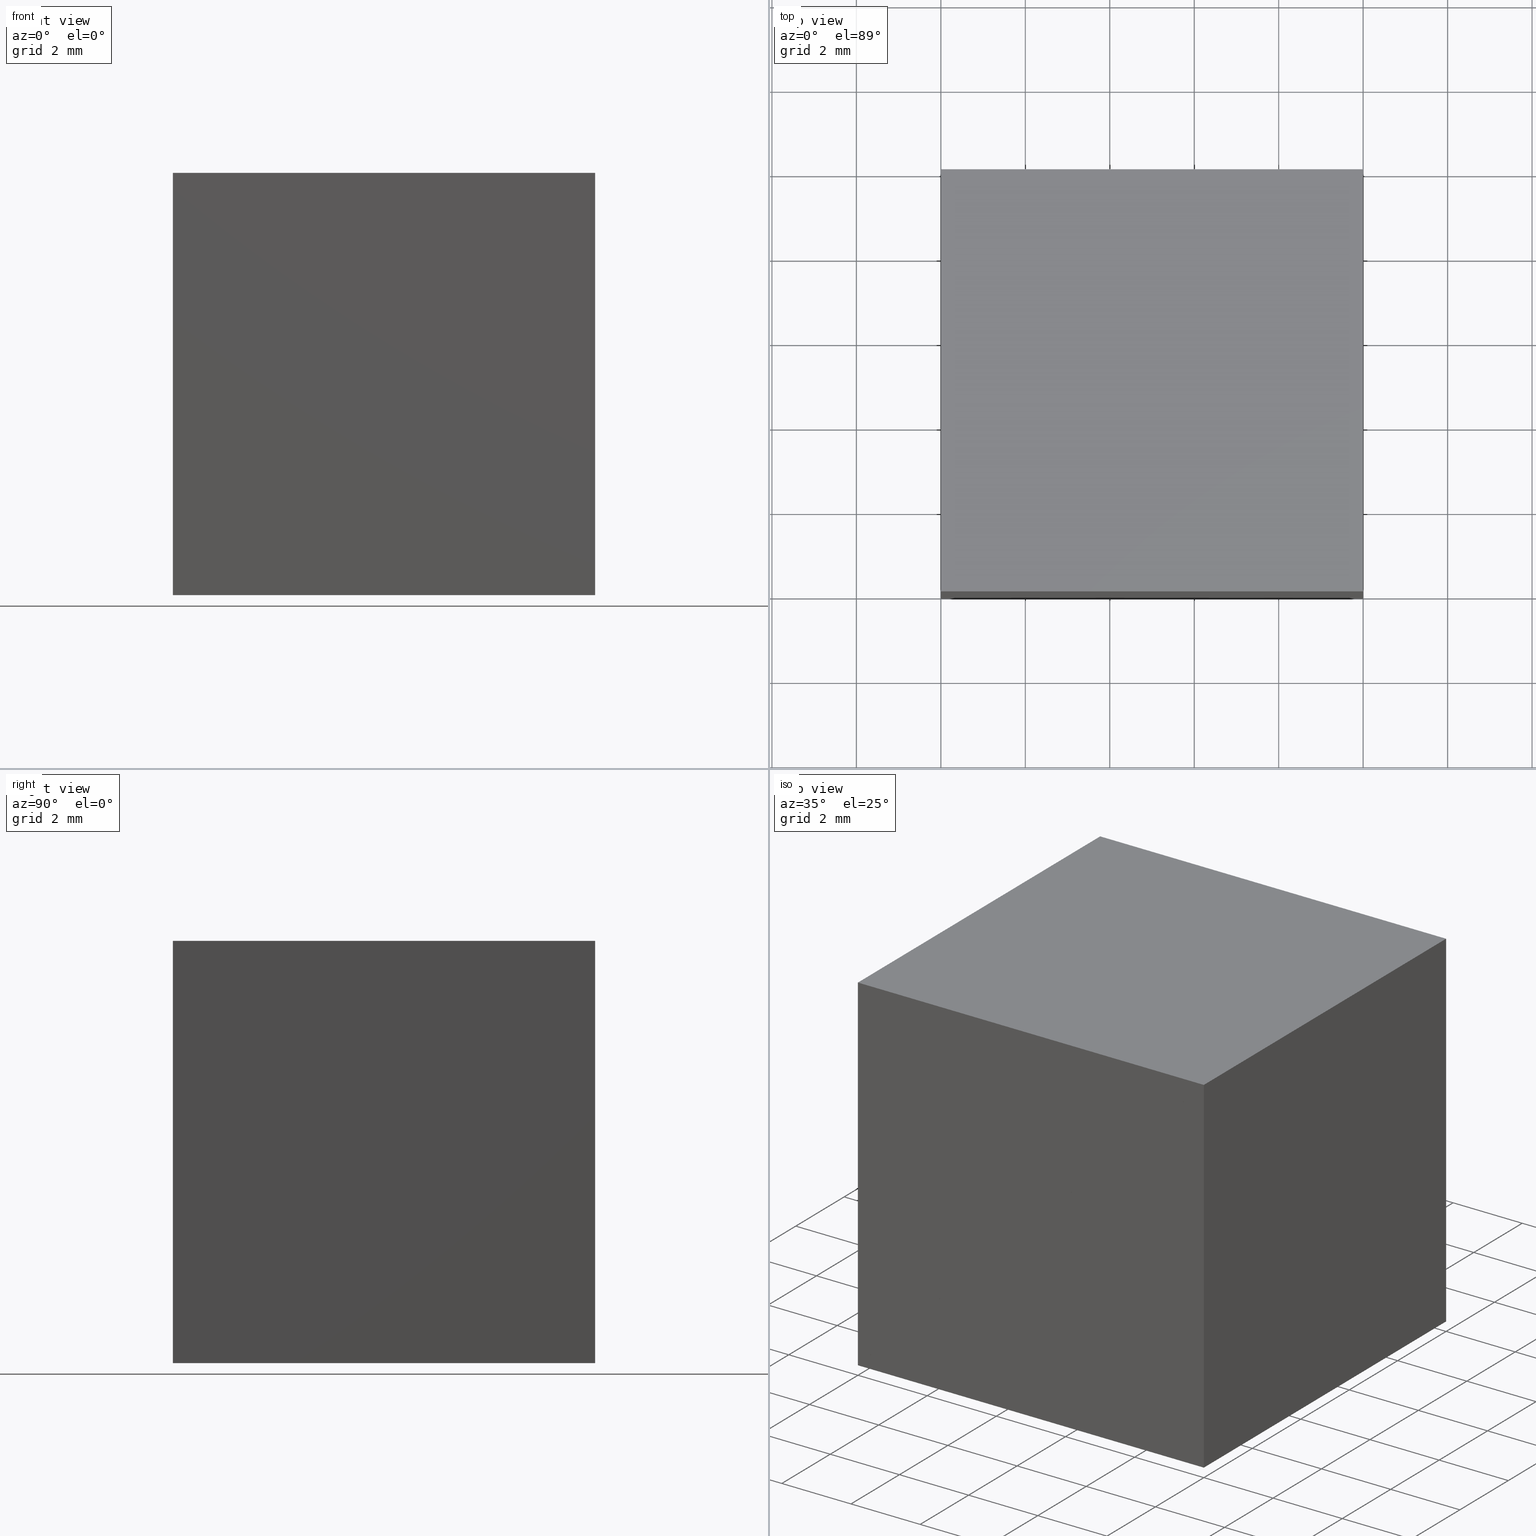
[diagram: canonical four-view strip — front | top / right | iso, engineering-drawing reading convention]
A machine part, canonical four-view strip (front | top / right | iso — engineering-drawing reading convention). The complete STEP part file that produces these views, byte-faithful:
ISO-10303-21;
HEADER;
FILE_DESCRIPTION (( 'STEP AP214' ),
    '1' );
FILE_NAME ('452000.STEP',
    '2019-08-22T05:47:40',
    ( 'user' ),
    ( '΢���й�' ),
    'SwSTEP 2.0',
    'SolidWorks 2016',
    '' );
FILE_SCHEMA (( 'AUTOMOTIVE_DESIGN' ));
ENDSEC;

DATA;
#1 = DIRECTION ( 'NONE',  ( -0.0000000000000000000, 0.0000000000000000000, 1.000000000000000000 ) ) ;
#2 = EDGE_LOOP ( 'NONE', ( #242, #60, #70, #237 ) ) ;
#3 = SURFACE_SIDE_STYLE ('',( #244 ) ) ;
#4 = ORIENTED_EDGE ( 'NONE', *, *, #204, .F. ) ;
#5 = DIRECTION ( 'NONE',  ( 0.0000000000000000000, 1.000000000000000000, 0.0000000000000000000 ) ) ;
#6 = VECTOR ( 'NONE', #214, 1000.000000000000000 ) ;
#7 = DIRECTION ( 'NONE',  ( -0.0000000000000000000, -1.000000000000000000, -0.0000000000000000000 ) ) ;
#8 = ORIENTED_EDGE ( 'NONE', *, *, #216, .T. ) ;
#9 = SURFACE_STYLE_USAGE ( .BOTH. , #143 ) ;
#10 = ORIENTED_EDGE ( 'NONE', *, *, #204, .T. ) ;
#11 = ORIENTED_EDGE ( 'NONE', *, *, #94, .F. ) ;
#12 = LINE ( 'NONE', #239, #129 ) ;
#13 = DIRECTION ( 'NONE',  ( -0.7071067811865476800, 0.0000000000000000000, -0.7071067811865474600 ) ) ;
#14 = ORIENTED_EDGE ( 'NONE', *, *, #127, .F. ) ;
#15 = PRODUCT_DEFINITION_CONTEXT ( 'detailed design', #222, 'design' ) ;
#16 = DIRECTION ( 'NONE',  ( 0.0000000000000000000, 0.0000000000000000000, 1.000000000000000000 ) ) ;
#17 = SURFACE_SIDE_STYLE ('',( #29 ) ) ;
#18 = LINE ( 'NONE', #146, #126 ) ;
#19 = LINE ( 'NONE', #48, #261 ) ;
#20 = EDGE_LOOP ( 'NONE', ( #140, #250, #200, #49 ) ) ;
#21 = ADVANCED_FACE ( 'NONE', ( #99 ), #195, .T. ) ;
#22 = DIRECTION ( 'NONE',  ( 0.0000000000000000000, 0.0000000000000000000, -1.000000000000000000 ) ) ;
#23 = CARTESIAN_POINT ( 'NONE',  ( 0.0000000000000000000, 10.00000000000000000, 0.0000000000000000000 ) ) ;
#24 = LINE ( 'NONE', #191, #268 ) ;
#25 = CARTESIAN_POINT ( 'NONE',  ( 0.0000000000000000000, 10.00000000000000000, -10.00000000000000000 ) ) ;
#26 = CARTESIAN_POINT ( 'NONE',  ( 0.0000000000000000000, 10.00000000000000000, -10.00000000000000000 ) ) ;
#27 = ORIENTED_EDGE ( 'NONE', *, *, #134, .F. ) ;
#28 = DIRECTION ( 'NONE',  ( 0.7071067811865476800, 0.0000000000000000000, 0.7071067811865474600 ) ) ;
#29 = SURFACE_STYLE_FILL_AREA ( #203 ) ;
#30 = CARTESIAN_POINT ( 'NONE',  ( -10.00000000000000000, 10.00000000000000000, -9.999999999999996400 ) ) ;
#31 = FILL_AREA_STYLE_COLOUR ( '', #43 ) ;
#32 = MANIFOLD_SOLID_BREP ( '͹̨-����1', #234 ) ;
#33 = LINE ( 'NONE', #182, #37 ) ;
#34 = DIRECTION ( 'NONE',  ( 1.000000000000000000, 0.0000000000000000000, 0.0000000000000000000 ) ) ;
#35 = APPLICATION_CONTEXT ( 'automotive_design' ) ;
#36 = AXIS2_PLACEMENT_3D ( 'NONE', #109, #1, #135 ) ;
#37 = VECTOR ( 'NONE', #22, 1000.000000000000000 ) ;
#38 = EDGE_LOOP ( 'NONE', ( #62, #14, #101, #167 ) ) ;
#39 = ADVANCED_FACE ( 'NONE', ( #224 ), #91, .F. ) ;
#40 = ORIENTED_EDGE ( 'NONE', *, *, #227, .F. ) ;
#41 = AXIS2_PLACEMENT_3D ( 'NONE', #23, #300, #133 ) ;
#42 = PLANE ( 'NONE',  #41 ) ;
#43 = COLOUR_RGB ( '',1.000000000000000000, 1.000000000000000000, 1.000000000000000000 ) ;
#44 = DIRECTION ( 'NONE',  ( -1.000000000000000000, 0.0000000000000000000, 3.469446951953614200E-016 ) ) ;
#45 = DIRECTION ( 'NONE',  ( 0.7071067811865474600, 0.0000000000000000000, -0.7071067811865476800 ) ) ;
#46 = CARTESIAN_POINT ( 'NONE',  ( 0.0000000000000000000, 10.00000000000000000, 0.0000000000000000000 ) ) ;
#47 = DIRECTION ( 'NONE',  ( 0.7071067811865476800, 0.0000000000000000000, 0.7071067811865474600 ) ) ;
#48 = CARTESIAN_POINT ( 'NONE',  ( 0.0000000000000000000, 10.00000000000000000, 0.0000000000000000000 ) ) ;
#49 = ORIENTED_EDGE ( 'NONE', *, *, #153, .T. ) ;
#50 = VERTEX_POINT ( 'NONE', #114 ) ;
#51 = CARTESIAN_POINT ( 'NONE',  ( 0.0000000000000000000, 10.00000000000000000, 0.0000000000000000000 ) ) ;
#52 = LINE ( 'NONE', #87, #179 ) ;
#53 = PRODUCT ( '452000', '452000', '', ( #174 ) ) ;
#54 =( NAMED_UNIT ( * ) SI_UNIT ( $, .STERADIAN. ) SOLID_ANGLE_UNIT ( ) );
#55 = EDGE_LOOP ( 'NONE', ( #202, #40, #27 ) ) ;
#56 = VERTEX_POINT ( 'NONE', #142 ) ;
#57 = UNCERTAINTY_MEASURE_WITH_UNIT (LENGTH_MEASURE( 1.000000000000000100E-005 ), #292, 'distance_accuracy_value', 'NONE');
#58 = ORIENTED_EDGE ( 'NONE', *, *, #258, .T. ) ;
#59 = LINE ( 'NONE', #215, #6 ) ;
#60 = ORIENTED_EDGE ( 'NONE', *, *, #107, .F. ) ;
#61 = DIRECTION ( 'NONE',  ( -0.0000000000000000000, -1.000000000000000000, -0.0000000000000000000 ) ) ;
#62 = ORIENTED_EDGE ( 'NONE', *, *, #94, .T. ) ;
#63 = LINE ( 'NONE', #262, #75 ) ;
#64 = EDGE_CURVE ( 'NONE', #197, #121, #19, .T. ) ;
#65 = VERTEX_POINT ( 'NONE', #72 ) ;
#66 = ORIENTED_EDGE ( 'NONE', *, *, #116, .T. ) ;
#67 = VERTEX_POINT ( 'NONE', #285 ) ;
#68 = VECTOR ( 'NONE', #264, 1000.000000000000000 ) ;
#69 = EDGE_CURVE ( 'NONE', #177, #296, #139, .T. ) ;
#70 = ORIENTED_EDGE ( 'NONE', *, *, #134, .T. ) ;
#71 = DIRECTION ( 'NONE',  ( 0.0000000000000000000, 0.0000000000000000000, 1.000000000000000000 ) ) ;
#72 = CARTESIAN_POINT ( 'NONE',  ( -10.00000000000000000, -0.0000000000000000000, -9.999999999999996400 ) ) ;
#73 = AXIS2_PLACEMENT_3D ( 'NONE', #254, #156, #232 ) ;
#74 = DIRECTION ( 'NONE',  ( 3.469446951953614200E-016, -0.0000000000000000000, 1.000000000000000000 ) ) ;
#75 = VECTOR ( 'NONE', #111, 1000.000000000000000 ) ;
#76 = LINE ( 'NONE', #266, #201 ) ;
#77 = FILL_AREA_STYLE_COLOUR ( '', #82 ) ;
#78 = FACE_OUTER_BOUND ( 'NONE', #38, .T. ) ;
#79 = EDGE_CURVE ( 'NONE', #50, #125, #76, .T. ) ;
#80 = VERTEX_POINT ( 'NONE', #290 ) ;
#81 = ADVANCED_FACE ( 'NONE', ( #144 ), #270, .T. ) ;
#82 = COLOUR_RGB ( '',1.000000000000000000, 1.000000000000000000, 1.000000000000000000 ) ;
#83 =( GEOMETRIC_REPRESENTATION_CONTEXT ( 3 ) GLOBAL_UNCERTAINTY_ASSIGNED_CONTEXT ( ( #168 ) ) GLOBAL_UNIT_ASSIGNED_CONTEXT ( ( #246, #223, #54 ) ) REPRESENTATION_CONTEXT ( 'NONE', 'WORKASPACE' ) );
#84 = EDGE_CURVE ( 'NONE', #125, #65, #24, .T. ) ;
#85 = DIRECTION ( 'NONE',  ( -1.000000000000000000, -0.0000000000000000000, -0.0000000000000000000 ) ) ;
#86 =( NAMED_UNIT ( * ) SI_UNIT ( $, .STERADIAN. ) SOLID_ANGLE_UNIT ( ) );
#87 = CARTESIAN_POINT ( 'NONE',  ( 0.0000000000000000000, 0.0000000000000000000, -10.00000000000000000 ) ) ;
#88 = FACE_OUTER_BOUND ( 'NONE', #20, .T. ) ;
#89 = CARTESIAN_POINT ( 'NONE',  ( 0.0000000000000000000, 0.0000000000000000000, 0.0000000000000000000 ) ) ;
#90 =( NAMED_UNIT ( * ) SI_UNIT ( $, .STERADIAN. ) SOLID_ANGLE_UNIT ( ) );
#91 = PLANE ( 'NONE',  #291 ) ;
#92 = PRESENTATION_STYLE_ASSIGNMENT (( #9 ) ) ;
#93 = PLANE ( 'NONE',  #181 ) ;
#94 = EDGE_CURVE ( 'NONE', #296, #188, #210, .T. ) ;
#95 = VECTOR ( 'NONE', #61, 1000.000000000000000 ) ;
#96 = CARTESIAN_POINT ( 'NONE',  ( -10.00000000000000000, 0.0000000000000000000, -9.999999999999996400 ) ) ;
#97 = DIRECTION ( 'NONE',  ( 0.0000000000000000000, -0.0000000000000000000, 1.000000000000000000 ) ) ;
#98 = AXIS2_PLACEMENT_3D ( 'NONE', #124, #273, #97 ) ;
#99 = FACE_OUTER_BOUND ( 'NONE', #55, .T. ) ;
#100 = VECTOR ( 'NONE', #187, 1000.000000000000000 ) ;
#101 = ORIENTED_EDGE ( 'NONE', *, *, #147, .F. ) ;
#102 = COLOUR_RGB ( '',1.000000000000000000, 1.000000000000000000, 1.000000000000000000 ) ;
#103 = ADVANCED_FACE ( 'NONE', ( #78 ), #93, .F. ) ;
#104 = PLANE ( 'NONE',  #73 ) ;
#105 = EDGE_LOOP ( 'NONE', ( #4, #193, #301, #284 ) ) ;
#106 = ADVANCED_BREP_SHAPE_REPRESENTATION ( '452000', ( #32, #196, #233 ), #83 ) ;
#107 = EDGE_CURVE ( 'NONE', #121, #67, #256, .T. ) ;
#108 = EDGE_LOOP ( 'NONE', ( #186, #66, #130 ) ) ;
#109 = CARTESIAN_POINT ( 'NONE',  ( -10.00000000000000000, 10.00000000000000000, 0.0000000000000000000 ) ) ;
#110 = FACE_OUTER_BOUND ( 'NONE', #2, .T. ) ;
#111 = DIRECTION ( 'NONE',  ( -1.000000000000000000, -0.0000000000000000000, -0.0000000000000000000 ) ) ;
#112 = DIRECTION ( 'NONE',  ( 0.0000000000000000000, -1.000000000000000000, 0.0000000000000000000 ) ) ;
#113 = PLANE ( 'NONE',  #218 ) ;
#114 = CARTESIAN_POINT ( 'NONE',  ( -10.00000000000000000, 10.00000000000000000, 0.0000000000000000000 ) ) ;
#115 = CARTESIAN_POINT ( 'NONE',  ( 0.0000000000000000000, 10.00000000000000000, 0.0000000000000000000 ) ) ;
#116 = EDGE_CURVE ( 'NONE', #263, #80, #18, .T. ) ;
#117 =( LENGTH_UNIT ( ) NAMED_UNIT ( * ) SI_UNIT ( .MILLI., .METRE. ) );
#118 = ORIENTED_EDGE ( 'NONE', *, *, #127, .T. ) ;
#119 = CARTESIAN_POINT ( 'NONE',  ( 0.0000000000000000000, 10.00000000000000000, -10.00000000000000000 ) ) ;
#120 = ORIENTED_EDGE ( 'NONE', *, *, #69, .F. ) ;
#121 = VERTEX_POINT ( 'NONE', #46 ) ;
#122 = FACE_OUTER_BOUND ( 'NONE', #260, .T. ) ;
#123 =( NAMED_UNIT ( * ) PLANE_ANGLE_UNIT ( ) SI_UNIT ( $, .RADIAN. ) );
#124 = CARTESIAN_POINT ( 'NONE',  ( 0.0000000000000000000, 0.0000000000000000000, 0.0000000000000000000 ) ) ;
#125 = VERTEX_POINT ( 'NONE', #288 ) ;
#126 = VECTOR ( 'NONE', #217, 1000.000000000000000 ) ;
#127 = EDGE_CURVE ( 'NONE', #263, #188, #251, .T. ) ;
#128 = ORIENTED_EDGE ( 'NONE', *, *, #165, .F. ) ;
#129 = VECTOR ( 'NONE', #28, 1000.000000000000000 ) ;
#130 = ORIENTED_EDGE ( 'NONE', *, *, #185, .T. ) ;
#131 = ADVANCED_FACE ( 'NONE', ( #122 ), #113, .F. ) ;
#132 = STYLED_ITEM ( 'NONE', ( #274 ), #106 ) ;
#133 = DIRECTION ( 'NONE',  ( -0.7071067811865476800, 0.0000000000000000000, -0.7071067811865474600 ) ) ;
#134 = EDGE_CURVE ( 'NONE', #121, #50, #63, .T. ) ;
#135 = DIRECTION ( 'NONE',  ( 1.000000000000000000, 0.0000000000000000000, 0.0000000000000000000 ) ) ;
#136 = VECTOR ( 'NONE', #47, 1000.000000000000000 ) ;
#137 = SURFACE_STYLE_USAGE ( .BOTH. , #3 ) ;
#138 = DIRECTION ( 'NONE',  ( 0.0000000000000000000, -0.0000000000000000000, 1.000000000000000000 ) ) ;
#139 = LINE ( 'NONE', #30, #68 ) ;
#140 = ORIENTED_EDGE ( 'NONE', *, *, #84, .F. ) ;
#141 = DIRECTION ( 'NONE',  ( -1.000000000000000000, 0.0000000000000000000, 0.0000000000000000000 ) ) ;
#142 = CARTESIAN_POINT ( 'NONE',  ( 0.0000000000000000000, 0.0000000000000000000, -10.00000000000000000 ) ) ;
#143 = SURFACE_SIDE_STYLE ('',( #287 ) ) ;
#144 = FACE_OUTER_BOUND ( 'NONE', #108, .T. ) ;
#145 = FILL_AREA_STYLE ('',( #31 ) ) ;
#146 = CARTESIAN_POINT ( 'NONE',  ( 0.0000000000000000000, 10.00000000000000000, 0.0000000000000000000 ) ) ;
#147 = EDGE_CURVE ( 'NONE', #177, #263, #12, .T. ) ;
#148 = DIRECTION ( 'NONE',  ( -0.0000000000000000000, 1.000000000000000000, 0.0000000000000000000 ) ) ;
#149 = ORIENTED_EDGE ( 'NONE', *, *, #219, .T. ) ;
#150 = SURFACE_STYLE_USAGE ( .BOTH. , #17 ) ;
#151 = AXIS2_PLACEMENT_3D ( 'NONE', #115, #148, #170 ) ;
#152 = PRESENTATION_LAYER_ASSIGNMENT (  '', '', ( #132 ) ) ;
#153 = EDGE_CURVE ( 'NONE', #197, #65, #59, .T. ) ;
#154 = FACE_OUTER_BOUND ( 'NONE', #105, .T. ) ;
#155 = ADVANCED_FACE ( 'NONE', ( #158 ), #161, .F. ) ;
#156 = DIRECTION ( 'NONE',  ( -1.000000000000000000, 0.0000000000000000000, 0.0000000000000000000 ) ) ;
#157 = PLANE ( 'NONE',  #36 ) ;
#158 = FACE_OUTER_BOUND ( 'NONE', #276, .T. ) ;
#159 = FILL_AREA_STYLE ('',( #190 ) ) ;
#160 = LINE ( 'NONE', #209, #282 ) ;
#161 = PLANE ( 'NONE',  #247 ) ;
#162 = CARTESIAN_POINT ( 'NONE',  ( 0.0000000000000000000, 10.00000000000000000, 0.0000000000000000000 ) ) ;
#163 = DIRECTION ( 'NONE',  ( 0.7071067811865476800, 0.0000000000000000000, 0.7071067811865474600 ) ) ;
#164 = MECHANICAL_DESIGN_GEOMETRIC_PRESENTATION_REPRESENTATION (  '', ( #132 ), #183 ) ;
#165 = EDGE_CURVE ( 'NONE', #56, #296, #52, .T. ) ;
#166 = DIRECTION ( 'NONE',  ( 0.0000000000000000000, -0.0000000000000000000, 1.000000000000000000 ) ) ;
#167 = ORIENTED_EDGE ( 'NONE', *, *, #69, .T. ) ;
#168 = UNCERTAINTY_MEASURE_WITH_UNIT (LENGTH_MEASURE( 1.000000000000000100E-005 ), #246, 'distance_accuracy_value', 'NONE');
#169 = LINE ( 'NONE', #211, #100 ) ;
#170 = DIRECTION ( 'NONE',  ( 0.0000000000000000000, -0.0000000000000000000, 1.000000000000000000 ) ) ;
#171 = PRODUCT_DEFINITION_SHAPE ( 'NONE', 'NONE',  #249 ) ;
#172 = ORIENTED_EDGE ( 'NONE', *, *, #165, .T. ) ;
#173 = VECTOR ( 'NONE', #44, 1000.000000000000000 ) ;
#174 = PRODUCT_CONTEXT ( 'NONE', #35, 'mechanical' ) ;
#175 = ORIENTED_EDGE ( 'NONE', *, *, #116, .F. ) ;
#176 = APPLICATION_PROTOCOL_DEFINITION ( 'draft international standard', 'automotive_design', 1998, #35 ) ;
#177 = VERTEX_POINT ( 'NONE', #283 ) ;
#178 = STYLED_ITEM ( 'NONE', ( #92 ), #32 ) ;
#179 = VECTOR ( 'NONE', #236, 1000.000000000000000 ) ;
#180 = ORIENTED_EDGE ( 'NONE', *, *, #219, .F. ) ;
#181 = AXIS2_PLACEMENT_3D ( 'NONE', #198, #45, #13 ) ;
#182 = CARTESIAN_POINT ( 'NONE',  ( 0.0000000000000000000, 0.0000000000000000000, 0.0000000000000000000 ) ) ;
#183 =( GEOMETRIC_REPRESENTATION_CONTEXT ( 3 ) GLOBAL_UNCERTAINTY_ASSIGNED_CONTEXT ( ( #57 ) ) GLOBAL_UNIT_ASSIGNED_CONTEXT ( ( #292, #123, #272 ) ) REPRESENTATION_CONTEXT ( 'NONE', 'WORKASPACE' ) );
#184 = DIRECTION ( 'NONE',  ( -0.0000000000000000000, -0.0000000000000000000, -1.000000000000000000 ) ) ;
#185 = EDGE_CURVE ( 'NONE', #80, #177, #238, .T. ) ;
#186 = ORIENTED_EDGE ( 'NONE', *, *, #147, .T. ) ;
#187 = DIRECTION ( 'NONE',  ( 0.7071067811865476800, 0.0000000000000000000, 0.7071067811865474600 ) ) ;
#188 = VERTEX_POINT ( 'NONE', #259 ) ;
#189 = VECTOR ( 'NONE', #7, 1000.000000000000000 ) ;
#190 = FILL_AREA_STYLE_COLOUR ( '', #102 ) ;
#191 = CARTESIAN_POINT ( 'NONE',  ( -10.00000000000000000, -0.0000000000000000000, -9.999999999999996400 ) ) ;
#192 = CARTESIAN_POINT ( 'NONE',  ( 0.0000000000000000000, 10.00000000000000000, 0.0000000000000000000 ) ) ;
#193 = ORIENTED_EDGE ( 'NONE', *, *, #153, .F. ) ;
#194 = DIRECTION ( 'NONE',  ( 1.000000000000000000, 0.0000000000000000000, -3.469446951953614200E-016 ) ) ;
#195 = PLANE ( 'NONE',  #199 ) ;
#196 = MANIFOLD_SOLID_BREP ( '͹̨-����2', #297 ) ;
#197 = VERTEX_POINT ( 'NONE', #212 ) ;
#198 = CARTESIAN_POINT ( 'NONE',  ( -10.00000000000000000, 10.00000000000000000, -9.999999999999996400 ) ) ;
#199 = AXIS2_PLACEMENT_3D ( 'NONE', #220, #241, #166 ) ;
#200 = ORIENTED_EDGE ( 'NONE', *, *, #227, .T. ) ;
#201 = VECTOR ( 'NONE', #112, 1000.000000000000000 ) ;
#202 = ORIENTED_EDGE ( 'NONE', *, *, #64, .F. ) ;
#203 = FILL_AREA_STYLE ('',( #77 ) ) ;
#204 = EDGE_CURVE ( 'NONE', #65, #67, #169, .T. ) ;
#205 = VECTOR ( 'NONE', #221, 1000.000000000000000 ) ;
#206 = ORIENTED_EDGE ( 'NONE', *, *, #258, .F. ) ;
#207 = ADVANCED_FACE ( 'NONE', ( #110 ), #157, .T. ) ;
#208 = CARTESIAN_POINT ( 'NONE',  ( 0.0000000000000000000, 10.00000000000000000, 0.0000000000000000000 ) ) ;
#209 = CARTESIAN_POINT ( 'NONE',  ( -10.00000000000000000, 10.00000000000000000, -9.999999999999996400 ) ) ;
#210 = LINE ( 'NONE', #96, #136 ) ;
#211 = CARTESIAN_POINT ( 'NONE',  ( 0.0000000000000000000, 0.0000000000000000000, 0.0000000000000000000 ) ) ;
#212 = CARTESIAN_POINT ( 'NONE',  ( -10.00000000000000000, 10.00000000000000000, -9.999999999999996400 ) ) ;
#213 = PRESENTATION_LAYER_ASSIGNMENT (  '', '', ( #178 ) ) ;
#214 = DIRECTION ( 'NONE',  ( 0.0000000000000000000, -1.000000000000000000, 0.0000000000000000000 ) ) ;
#215 = CARTESIAN_POINT ( 'NONE',  ( -10.00000000000000000, 10.00000000000000000, -9.999999999999996400 ) ) ;
#216 = EDGE_CURVE ( 'NONE', #67, #125, #226, .T. ) ;
#217 = DIRECTION ( 'NONE',  ( 0.0000000000000000000, 0.0000000000000000000, -1.000000000000000000 ) ) ;
#218 = AXIS2_PLACEMENT_3D ( 'NONE', #162, #141, #71 ) ;
#219 = EDGE_CURVE ( 'NONE', #80, #56, #289, .T. ) ;
#220 = CARTESIAN_POINT ( 'NONE',  ( 0.0000000000000000000, 10.00000000000000000, 0.0000000000000000000 ) ) ;
#221 = DIRECTION ( 'NONE',  ( 0.0000000000000000000, -1.000000000000000000, 0.0000000000000000000 ) ) ;
#222 = APPLICATION_CONTEXT ( 'automotive_design' ) ;
#223 =( NAMED_UNIT ( * ) PLANE_ANGLE_UNIT ( ) SI_UNIT ( $, .RADIAN. ) );
#224 = FACE_OUTER_BOUND ( 'NONE', #252, .T. ) ;
#225 = UNCERTAINTY_MEASURE_WITH_UNIT (LENGTH_MEASURE( 1.000000000000000100E-005 ), #281, 'distance_accuracy_value', 'NONE');
#226 = LINE ( 'NONE', #255, #235 ) ;
#227 = EDGE_CURVE ( 'NONE', #50, #197, #160, .T. ) ;
#228 = MECHANICAL_DESIGN_GEOMETRIC_PRESENTATION_REPRESENTATION (  '', ( #178 ), #243 ) ;
#229 = ADVANCED_FACE ( 'NONE', ( #154 ), #42, .T. ) ;
#230 = FACE_OUTER_BOUND ( 'NONE', #271, .T. ) ;
#231 = STYLED_ITEM ( 'NONE', ( #298 ), #196 ) ;
#232 = DIRECTION ( 'NONE',  ( 0.0000000000000000000, 0.0000000000000000000, 1.000000000000000000 ) ) ;
#233 = AXIS2_PLACEMENT_3D ( 'NONE', #245, #16, #34 ) ;
#234 = CLOSED_SHELL ( 'NONE', ( #103, #131, #39, #81, #299 ) ) ;
#235 = VECTOR ( 'NONE', #85, 1000.000000000000000 ) ;
#236 = DIRECTION ( 'NONE',  ( -1.000000000000000000, 0.0000000000000000000, 3.469446951953614200E-016 ) ) ;
#237 = ORIENTED_EDGE ( 'NONE', *, *, #79, .T. ) ;
#238 = LINE ( 'NONE', #26, #173 ) ;
#239 = CARTESIAN_POINT ( 'NONE',  ( -10.00000000000000000, 10.00000000000000000, -9.999999999999996400 ) ) ;
#240 = ORIENTED_EDGE ( 'NONE', *, *, #84, .T. ) ;
#241 = DIRECTION ( 'NONE',  ( 0.0000000000000000000, 1.000000000000000000, 0.0000000000000000000 ) ) ;
#242 = ORIENTED_EDGE ( 'NONE', *, *, #216, .F. ) ;
#243 =( GEOMETRIC_REPRESENTATION_CONTEXT ( 3 ) GLOBAL_UNCERTAINTY_ASSIGNED_CONTEXT ( ( #280 ) ) GLOBAL_UNIT_ASSIGNED_CONTEXT ( ( #117, #286, #90 ) ) REPRESENTATION_CONTEXT ( 'NONE', 'WORKASPACE' ) );
#244 = SURFACE_STYLE_FILL_AREA ( #159 ) ;
#245 = CARTESIAN_POINT ( 'NONE',  ( 0.0000000000000000000, 0.0000000000000000000, 0.0000000000000000000 ) ) ;
#246 =( LENGTH_UNIT ( ) NAMED_UNIT ( * ) SI_UNIT ( .MILLI., .METRE. ) );
#247 = AXIS2_PLACEMENT_3D ( 'NONE', #89, #5, #138 ) ;
#248 = APPLICATION_PROTOCOL_DEFINITION ( 'draft international standard', 'automotive_design', 1998, #222 ) ;
#249 = PRODUCT_DEFINITION ( 'δ֪', '', #267, #15 ) ;
#250 = ORIENTED_EDGE ( 'NONE', *, *, #79, .F. ) ;
#251 = LINE ( 'NONE', #192, #189 ) ;
#252 = EDGE_LOOP ( 'NONE', ( #172, #120, #278, #149 ) ) ;
#253 = ADVANCED_FACE ( 'NONE', ( #88 ), #104, .T. ) ;
#254 = CARTESIAN_POINT ( 'NONE',  ( -10.00000000000000000, 10.00000000000000000, -9.999999999999996400 ) ) ;
#255 = CARTESIAN_POINT ( 'NONE',  ( -10.00000000000000000, 0.0000000000000000000, 0.0000000000000000000 ) ) ;
#256 = LINE ( 'NONE', #51, #205 ) ;
#257 =( NAMED_UNIT ( * ) PLANE_ANGLE_UNIT ( ) SI_UNIT ( $, .RADIAN. ) );
#258 = EDGE_CURVE ( 'NONE', #188, #56, #33, .T. ) ;
#259 = CARTESIAN_POINT ( 'NONE',  ( 0.0000000000000000000, 0.0000000000000000000, 0.0000000000000000000 ) ) ;
#260 = EDGE_LOOP ( 'NONE', ( #58, #180, #175, #118 ) ) ;
#261 = VECTOR ( 'NONE', #163, 1000.000000000000000 ) ;
#262 = CARTESIAN_POINT ( 'NONE',  ( -10.00000000000000000, 10.00000000000000000, 0.0000000000000000000 ) ) ;
#263 = VERTEX_POINT ( 'NONE', #208 ) ;
#264 = DIRECTION ( 'NONE',  ( -0.0000000000000000000, -1.000000000000000000, -0.0000000000000000000 ) ) ;
#265 = PRESENTATION_LAYER_ASSIGNMENT (  '', '', ( #231 ) ) ;
#266 = CARTESIAN_POINT ( 'NONE',  ( -10.00000000000000000, 10.00000000000000000, 0.0000000000000000000 ) ) ;
#267 = PRODUCT_DEFINITION_FORMATION_WITH_SPECIFIED_SOURCE ( '�κ�', '', #53, .NOT_KNOWN. ) ;
#268 = VECTOR ( 'NONE', #269, 1000.000000000000000 ) ;
#269 = DIRECTION ( 'NONE',  ( -0.0000000000000000000, -0.0000000000000000000, -1.000000000000000000 ) ) ;
#270 = PLANE ( 'NONE',  #151 ) ;
#271 = EDGE_LOOP ( 'NONE', ( #11, #128, #206 ) ) ;
#272 =( NAMED_UNIT ( * ) SI_UNIT ( $, .STERADIAN. ) SOLID_ANGLE_UNIT ( ) );
#273 = DIRECTION ( 'NONE',  ( -0.0000000000000000000, 1.000000000000000000, 0.0000000000000000000 ) ) ;
#274 = PRESENTATION_STYLE_ASSIGNMENT (( #150 ) ) ;
#275 = PRODUCT_RELATED_PRODUCT_CATEGORY ( 'part', '', ( #53 ) ) ;
#276 = EDGE_LOOP ( 'NONE', ( #10, #8, #240 ) ) ;
#277 = MECHANICAL_DESIGN_GEOMETRIC_PRESENTATION_REPRESENTATION (  '', ( #231 ), #295 ) ;
#278 = ORIENTED_EDGE ( 'NONE', *, *, #185, .F. ) ;
#279 = CARTESIAN_POINT ( 'NONE',  ( -10.00000000000000000, 0.0000000000000000000, -9.999999999999996400 ) ) ;
#280 = UNCERTAINTY_MEASURE_WITH_UNIT (LENGTH_MEASURE( 1.000000000000000100E-005 ), #117, 'distance_accuracy_value', 'NONE');
#281 =( LENGTH_UNIT ( ) NAMED_UNIT ( * ) SI_UNIT ( .MILLI., .METRE. ) );
#282 = VECTOR ( 'NONE', #184, 1000.000000000000000 ) ;
#283 = CARTESIAN_POINT ( 'NONE',  ( -10.00000000000000000, 10.00000000000000000, -9.999999999999996400 ) ) ;
#284 = ORIENTED_EDGE ( 'NONE', *, *, #107, .T. ) ;
#285 = CARTESIAN_POINT ( 'NONE',  ( 0.0000000000000000000, 0.0000000000000000000, 0.0000000000000000000 ) ) ;
#286 =( NAMED_UNIT ( * ) PLANE_ANGLE_UNIT ( ) SI_UNIT ( $, .RADIAN. ) );
#287 = SURFACE_STYLE_FILL_AREA ( #145 ) ;
#288 = CARTESIAN_POINT ( 'NONE',  ( -10.00000000000000000, 0.0000000000000000000, 0.0000000000000000000 ) ) ;
#289 = LINE ( 'NONE', #25, #95 ) ;
#290 = CARTESIAN_POINT ( 'NONE',  ( 0.0000000000000000000, 10.00000000000000000, -10.00000000000000000 ) ) ;
#291 = AXIS2_PLACEMENT_3D ( 'NONE', #119, #74, #194 ) ;
#292 =( LENGTH_UNIT ( ) NAMED_UNIT ( * ) SI_UNIT ( .MILLI., .METRE. ) );
#293 = SHAPE_DEFINITION_REPRESENTATION ( #171, #106 ) ;
#294 = PLANE ( 'NONE',  #98 ) ;
#295 =( GEOMETRIC_REPRESENTATION_CONTEXT ( 3 ) GLOBAL_UNCERTAINTY_ASSIGNED_CONTEXT ( ( #225 ) ) GLOBAL_UNIT_ASSIGNED_CONTEXT ( ( #281, #257, #86 ) ) REPRESENTATION_CONTEXT ( 'NONE', 'WORKASPACE' ) );
#296 = VERTEX_POINT ( 'NONE', #279 ) ;
#297 = CLOSED_SHELL ( 'NONE', ( #229, #253, #207, #21, #155 ) ) ;
#298 = PRESENTATION_STYLE_ASSIGNMENT (( #137 ) ) ;
#299 = ADVANCED_FACE ( 'NONE', ( #230 ), #294, .F. ) ;
#300 = DIRECTION ( 'NONE',  ( 0.7071067811865474600, 0.0000000000000000000, -0.7071067811865476800 ) ) ;
#301 = ORIENTED_EDGE ( 'NONE', *, *, #64, .T. ) ;
ENDSEC;
END-ISO-10303-21;
